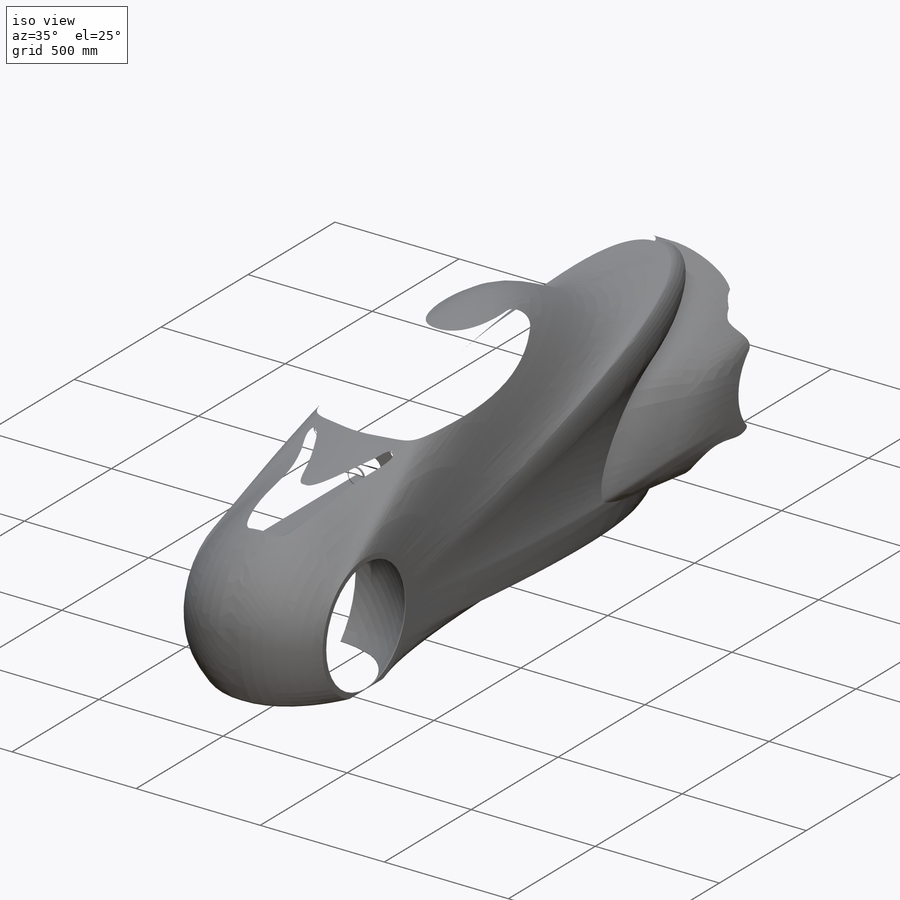
[diagram: iso view]
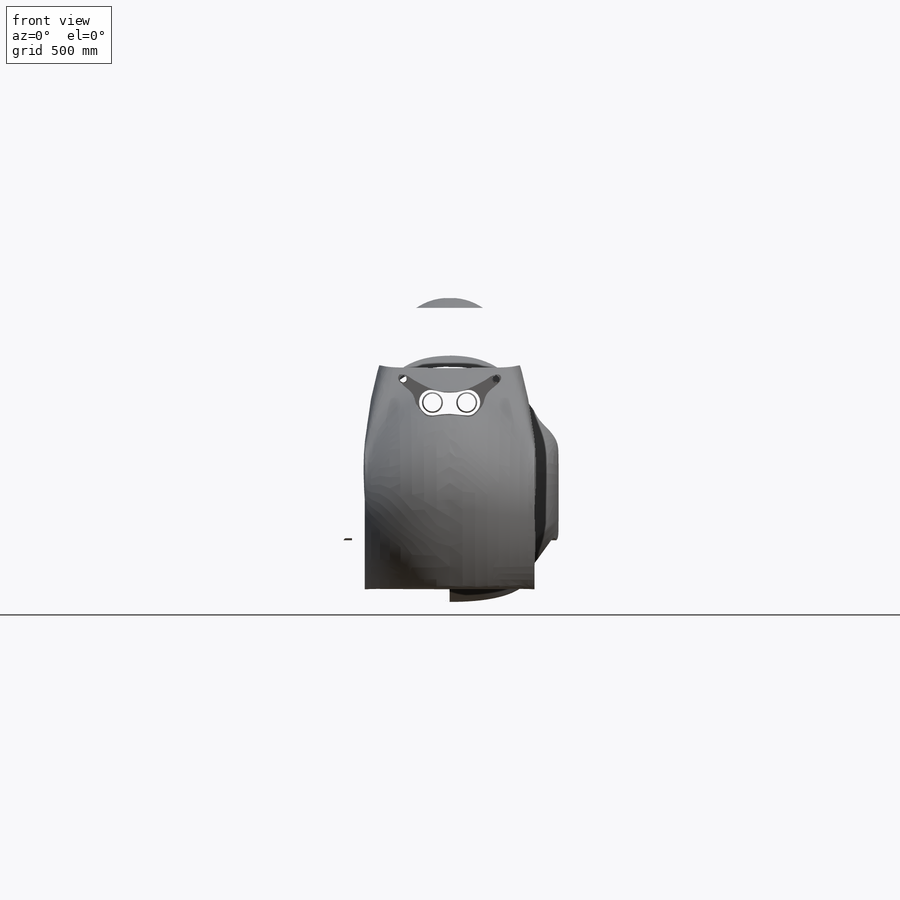
[diagram: front view]
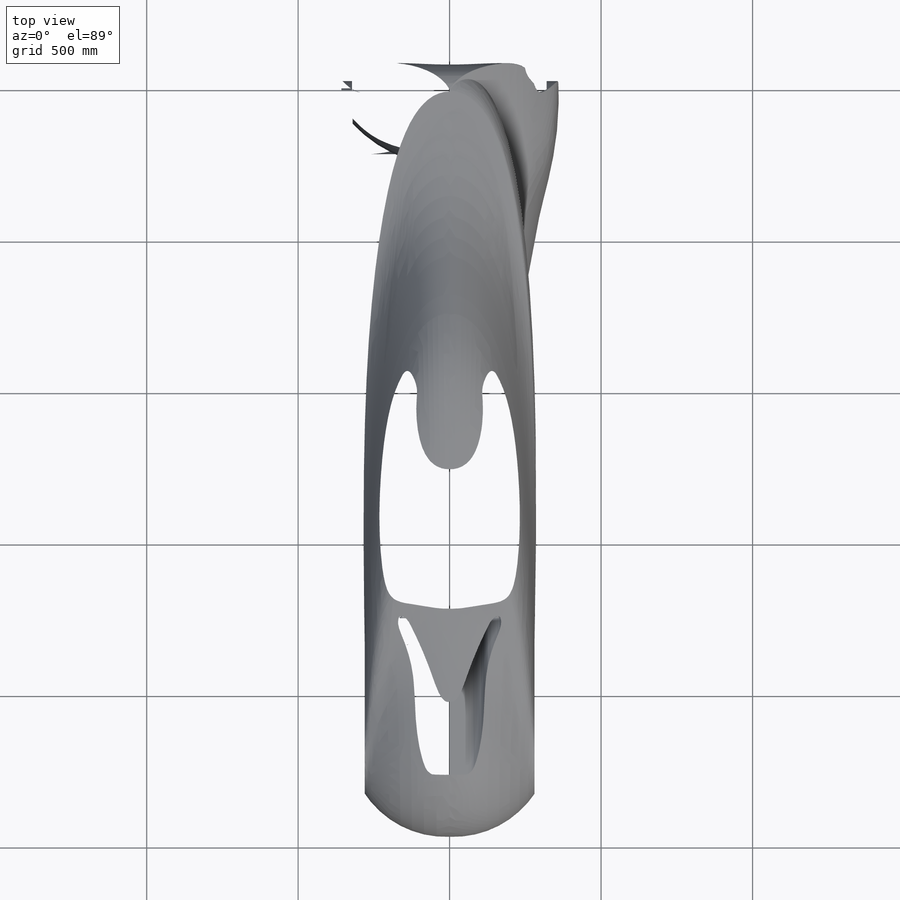
[diagram: top view]
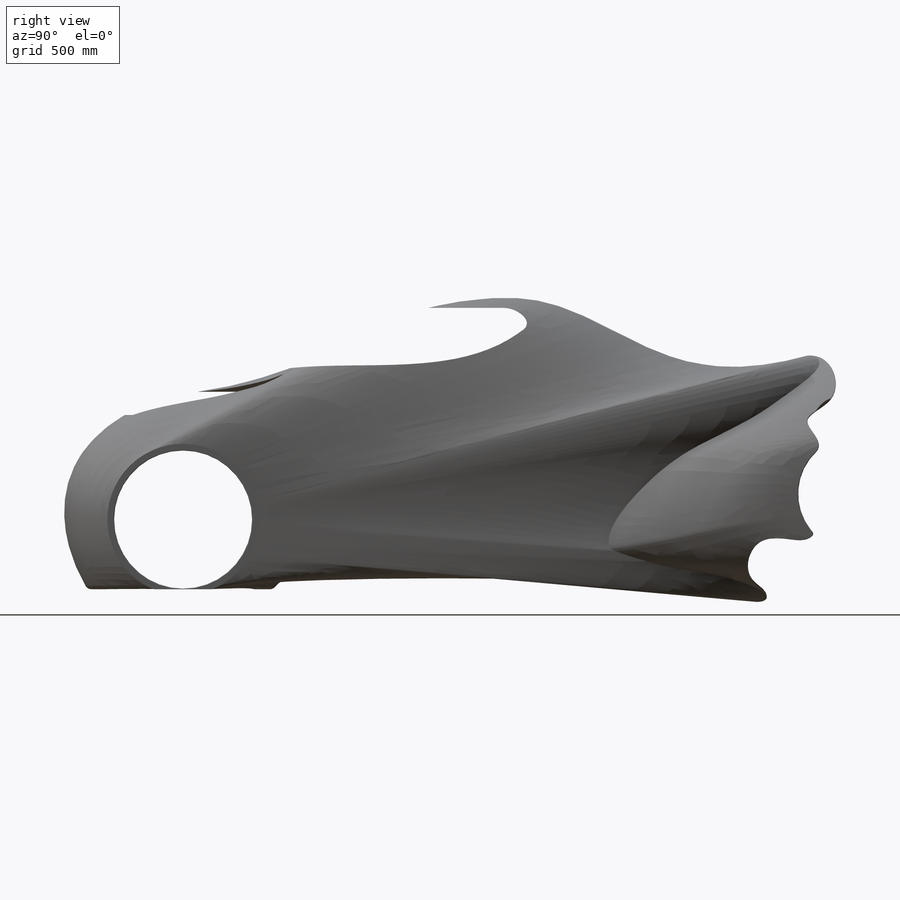
[diagram: right view]
SOLIDWORKS PART (.sldprt)
format: sldprt  version: not decoded by parser v0  size: 3,303,936 bytes
history: native  units: mm
features: sketch x24, mirror x15, plane x11, cut_extrude x6, cut_revolve x3, fillet x2, extrude x2, material x1 (+10 scaffold rows collapsed)
feature tree (74):
  scaffold x10  (default folders/planes/origin — collapsed)
  material  "Material <nicht angegeben>"
  plane  "Ebene vorne"
  plane  "Ebene oben"
  plane  "Ebene rechts"
  sketch  "Profil-Body"  dims[c1.D1=850.0mm c1.D2=680.0mm c1.D3=650.0mm c1.D4=500.0mm c1.D5=420.0mm c1.D6=420.0mm c2.D5=~12.340473mm c2.D6=~22.340473mm c2.D1=~1.084393mm c3.D5=~4.212325mm]
  plane  "Ebene1"  Offset=280mm
  sketch  "Profil-Felge"  dims[D1=~1.795008mm D2=~379.999698mm]
  plane  "Ebene2"  Offset=125.445861mm
  sketch  "Leitkurve-Vorderrad"  dims[D1=~3.437285mm]
  sketch  "Skizze1"  dims[c1.D1=450.0mm c1.D2=380.0mm c1.D3=~168.046576mm c2.D3=780.0mm c2.D1=~81.633397mm c2.D4=~2551.364926mm c2.D5=~6.173376mm c3.D4=0.0mm]
  plane  "Ebene3"  Offset=360mm
  sketch  "Skizze2"  dims[D1=340.0mm]
  plane  "Ebene4"  Offset=249.705422mm
  sketch  "Skizze8"  dims[D1=~965.430025mm]
  sketch  "Skizze11"  dims[D1=~2.383464mm]
  sketch  "Skizze12"
  sketch  "3D-Skizze1"  dims[c1.D1=~784.874761mm c2.D1=~1991.496301mm c3.D1=~19.853163mm]
  plane  "Ebene für Radschnitt"
  sketch  "Radschnitt"  dims[c1.D5=~448.362654mm c1.D1=400.0mm c1.D2=320.0mm c1.D3=320.0mm c1.D4=140.0mm c2.D5=~1.168654mm]
  cut_revolve  "Radschnitt hinten"  Angle=360deg
  sketch  "Skizze14"  dims[D1=0.3794mm]
  cut_extrude  "Schnitt-Linear austragen1"  [1 undecoded]
  sketch  "3D-Skizze2"  dims[c1.D1=~1011.447273mm c2.D1=~1418.974882mm c3.D1=~7.729122mm c4.D1=~873.767448mm c5.D1=~18.275816mm]
  plane  "Ebene6"
  sketch  "Skizze15"  dims[c1.D5=~398.369224mm c1.D1=~0.00028mm c1.D2=280.0mm c1.D3=340.0mm c1.D4=115.0mm c2.D5=225.0mm]
  cut_revolve  "Radschnitt vorne"  Angle=360deg
  mirror  "Spiegeln1"
  fillet  "Verrundung2"  Radius=2mm
  mirror  "Verrundung3"
  mirror  "Verrundung4"
  mirror  "Verrundung5"
  mirror  "Verrundung6"
  mirror  "Verrundung7"
  mirror  "Verrundung8"
  mirror  "Verrundung9"
  plane  "Ebene7"  Offset=1468.500148mm
  sketch  "Skizze16"  dims[D3=~32.335232mm D1=120.0mm D2=140.0mm]
  mirror  "Verrundung10"
  cut_extrude  "Schnitt-Linear austragen2"  Depth=734mm
  sketch  "Skizze17"  dims[D1=~1.582856mm]
  extrude  "Aufsatz-Linear austragen1"  Depth=21mm
  mirror  "Verrundung11"
  sketch  "Skizze18"  dims[D1=~20.263438mm]
  cut_extrude  "Schnitt-Linear austragen3"  Depth=5mm
  mirror  "Verrundung13"
  sketch  "Skizze19"  dims[D1=~3.475551mm]
  cut_extrude  "Schnitt-Linear austragen4"  Depth=5mm
  sketch  "Skizze20"  dims[D1=~20.263438mm]
  extrude  "Aufsatz-Linear austragen2"  Depth=15mm
  mirror  "Verrundung14"
  sketch  "Skizze21"  dims[D1=~69.852687mm]
  plane  "Ebene8"  Offset=816.817093mm
  sketch  "Skizze22"  dims[D1=~67.29455mm]
  mirror  "Spiegeln2"
  mirror  "Verrundung15"
  sketch  "Skizze25"  dims[D1=~0.52434mm]
  cut_revolve  "Schnitt-Rotation1"  Angle=360deg
  fillet  "Spiegeln3"  [1 undecoded]
  sketch  "Skizze26"  dims[D1=~12.845817mm]
  cut_extrude  "Schnitt-Linear austragen5"  [1 undecoded]
  sketch  "Skizze30"  dims[D2=8.4399mm D1=10.0mm]
  cut_extrude  "Schnitt-Linear austragen7"  Depth=500mm
  sketch  "Skizze31"  dims[D1=~3.588238mm]
  mirror  "Oberflächenausfüllung6"
decode coverage: 33 of 52 modeling features carry decoded parameters
note: ~ marks probable driven/reference dimensions
note: 3 parameter values undecoded
summary: no parameter record found for 3 features
note: suppression state not decoded; provenance and decode notes live in map.json
